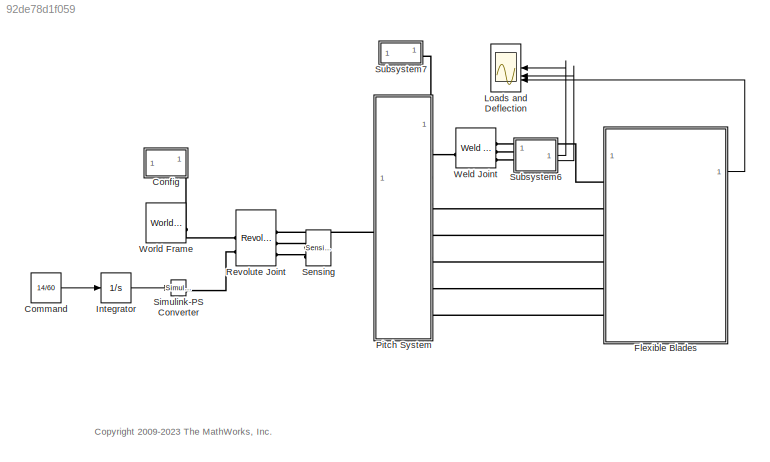
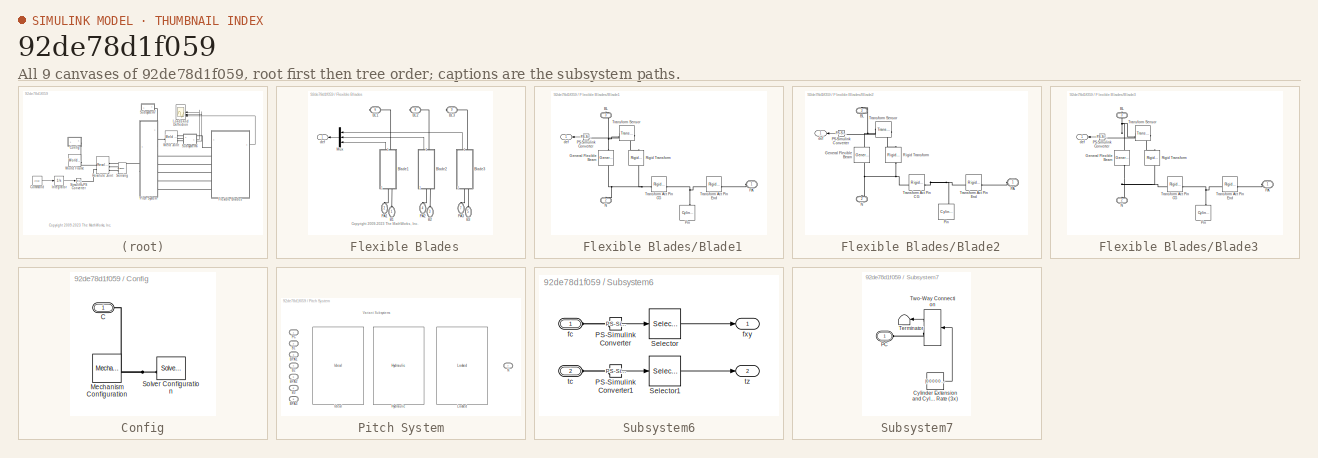
[diagram: thumbnail index - all 9 canvases of the model, root first then tree order]
MODEL slx_92de78d1f059
KIND model
CONFIG AbsTol = auto
CONFIG EnableMultiTasking = on
CONFIG FixedStep = auto
CONFIG InitFcn = cantilever1=cantilever_aluminum;\nload1.mass = 20 ; %kg\nload1.inertia = eye(3) ; % assume point mass\nload2=load1;\nload2.angle = 35 * pi / 180;
CONFIG MaxStep = auto
CONFIG MinStep = auto
CONFIG PostLoadFcn = loadMass = 20; %kg
CONFIG PreLoadFcn = load ss_cantilever_pva.mat\nwarning('off','Simulink:SL_SaveWithParameterizedLinks_Warning');\n\n
CONFIG RelTol = 1e-5
CONFIG SampleTimeConstraint = Unconstrained
CONFIG SolverName = ode15s
CONFIG StartTime = 0.0
CONFIG StopTime = 10
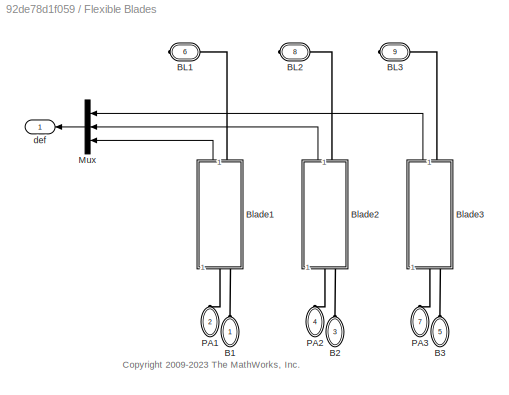
BLOCK [SubSystem]  Flexible Blades
BLOCK [PMIOPort]  Flexible Blades/B1
  NameLocation = right
  Side = Left
  Tag = PMCPort
BLOCK [PMIOPort]  Flexible Blades/B2
  NameLocation = right
  Port = 3
  Side = Left
  Tag = PMCPort
BLOCK [PMIOPort]  Flexible Blades/B3
  NameLocation = right
  Port = 5
  Side = Left
  Tag = PMCPort
BLOCK [PMIOPort]  Flexible Blades/BL1
  Port = 6
  Side = Right
  Tag = PMCPort
BLOCK [PMIOPort]  Flexible Blades/BL2
  Port = 8
  Side = Right
  Tag = PMCPort
BLOCK [PMIOPort]  Flexible Blades/BL3
  Port = 9
  Side = Right
  Tag = PMCPort
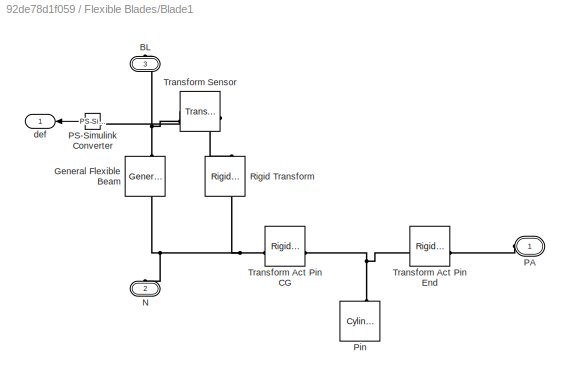
BLOCK [SubSystem]  Flexible Blades/Blade1
  NameLocation = right
BLOCK [PMIOPort]  Flexible Blades/Blade1/BL
  NameLocation = right
  Port = 3
  Side = Right
BLOCK [Reference]  Flexible Blades/Blade1/General Flexible Beam  REF=sm_lib/Body Elements/Flexible Bodies/Beams/General Flexible Beam
  NameLocation = left
  SourceBlock = sm_lib/Body Elements/Flexible Bodies/Beams/General Flexible Beam
  SourceType = General Flexible Beam
BLOCK [PMIOPort]  Flexible Blades/Blade1/N
  NameLocation = right
  Port = 2
  Side = Left
BLOCK [PMIOPort]  Flexible Blades/Blade1/PA
  Side = Left
BLOCK [Reference]  Flexible Blades/Blade1/PS-Simulink Converter  REF=nesl_utility/PS-Simulink
Converter
  NameLocation = top
  SourceBlock = nesl_utility/PS-Simulink\nConverter
  SourceType = PS-Simulink\nConverter
BLOCK [Reference]  Flexible Blades/Blade1/Pin  REF=sm_lib/Body Elements/Cylindrical Solid
  NameLocation = right
  SourceBlock = sm_lib/Body Elements/Cylindrical Solid
  SourceType = Cylindrical Solid
BLOCK [Reference]  Flexible Blades/Blade1/Rigid Transform  REF=sm_lib/Frames and
Transforms/Rigid
Transform
  NameLocation = right
  SourceBlock = sm_lib/Frames and\nTransforms/Rigid\nTransform
  SourceType = Rigid\nTransform
BLOCK [Reference]  Flexible Blades/Blade1/Transform Act Pin CG  REF=sm_lib/Frames and
Transforms/Rigid
Transform
  SourceBlock = sm_lib/Frames and\nTransforms/Rigid\nTransform
  SourceType = Rigid\nTransform
BLOCK [Reference]  Flexible Blades/Blade1/Transform Act Pin End  REF=sm_lib/Frames and
Transforms/Rigid
Transform
  SourceBlock = sm_lib/Frames and\nTransforms/Rigid\nTransform
  SourceType = Rigid\nTransform
BLOCK [Reference]  Flexible Blades/Blade1/Transform Sensor  REF=sm_lib/Frames and
Transforms/Transform
Sensor
  NameLocation = top
  SourceBlock = sm_lib/Frames and\nTransforms/Transform\nSensor
  SourceType = Transform\nSensor
BLOCK [Outport]  Flexible Blades/Blade1/def
  NameLocation = top
  VectorParamsAs1DForOutWhenUnconnected = off
BLOCK [SubSystem]  Flexible Blades/Blade2
  NameLocation = right
BLOCK [PMIOPort]  Flexible Blades/Blade2/BL
  NameLocation = right
  Port = 3
  Side = Right
BLOCK [Reference]  Flexible Blades/Blade2/General Flexible Beam  REF=sm_lib/Body Elements/Flexible Bodies/Beams/General Flexible Beam
  NameLocation = left
  SourceBlock = sm_lib/Body Elements/Flexible Bodies/Beams/General Flexible Beam
  SourceType = General Flexible Beam
BLOCK [PMIOPort]  Flexible Blades/Blade2/N
  NameLocation = right
  Port = 2
  Side = Left
BLOCK [PMIOPort]  Flexible Blades/Blade2/PA
  Side = Left
BLOCK [Reference]  Flexible Blades/Blade2/PS-Simulink Converter  REF=nesl_utility/PS-Simulink
Converter
  NameLocation = top
  SourceBlock = nesl_utility/PS-Simulink\nConverter
  SourceType = PS-Simulink\nConverter
BLOCK [Reference]  Flexible Blades/Blade2/Pin  REF=sm_lib/Body Elements/Cylindrical Solid
  NameLocation = right
  SourceBlock = sm_lib/Body Elements/Cylindrical Solid
  SourceType = Cylindrical Solid
BLOCK [Reference]  Flexible Blades/Blade2/Rigid Transform  REF=sm_lib/Frames and
Transforms/Rigid
Transform
  NameLocation = right
  SourceBlock = sm_lib/Frames and\nTransforms/Rigid\nTransform
  SourceType = Rigid\nTransform
BLOCK [Reference]  Flexible Blades/Blade2/Transform Act Pin CG  REF=sm_lib/Frames and
Transforms/Rigid
Transform
  SourceBlock = sm_lib/Frames and\nTransforms/Rigid\nTransform
  SourceType = Rigid\nTransform
BLOCK [Reference]  Flexible Blades/Blade2/Transform Act Pin End  REF=sm_lib/Frames and
Transforms/Rigid
Transform
  SourceBlock = sm_lib/Frames and\nTransforms/Rigid\nTransform
  SourceType = Rigid\nTransform
BLOCK [Reference]  Flexible Blades/Blade2/Transform Sensor  REF=sm_lib/Frames and
Transforms/Transform
Sensor
  NameLocation = top
  SourceBlock = sm_lib/Frames and\nTransforms/Transform\nSensor
  SourceType = Transform\nSensor
BLOCK [Outport]  Flexible Blades/Blade2/def
  NameLocation = top
  VectorParamsAs1DForOutWhenUnconnected = off
BLOCK [SubSystem]  Flexible Blades/Blade3
  NameLocation = right
BLOCK [PMIOPort]  Flexible Blades/Blade3/BL
  NameLocation = right
  Port = 3
  Side = Right
BLOCK [Reference]  Flexible Blades/Blade3/General Flexible Beam  REF=sm_lib/Body Elements/Flexible Bodies/Beams/General Flexible Beam
  NameLocation = left
  SourceBlock = sm_lib/Body Elements/Flexible Bodies/Beams/General Flexible Beam
  SourceType = General Flexible Beam
BLOCK [PMIOPort]  Flexible Blades/Blade3/N
  NameLocation = right
  Port = 2
  Side = Left
BLOCK [PMIOPort]  Flexible Blades/Blade3/PA
  Side = Left
BLOCK [Reference]  Flexible Blades/Blade3/PS-Simulink Converter  REF=nesl_utility/PS-Simulink
Converter
  NameLocation = top
  SourceBlock = nesl_utility/PS-Simulink\nConverter
  SourceType = PS-Simulink\nConverter
BLOCK [Reference]  Flexible Blades/Blade3/Pin  REF=sm_lib/Body Elements/Cylindrical Solid
  NameLocation = right
  SourceBlock = sm_lib/Body Elements/Cylindrical Solid
  SourceType = Cylindrical Solid
BLOCK [Reference]  Flexible Blades/Blade3/Rigid Transform  REF=sm_lib/Frames and
Transforms/Rigid
Transform
  NameLocation = right
  SourceBlock = sm_lib/Frames and\nTransforms/Rigid\nTransform
  SourceType = Rigid\nTransform
BLOCK [Reference]  Flexible Blades/Blade3/Transform Act Pin CG  REF=sm_lib/Frames and
Transforms/Rigid
Transform
  SourceBlock = sm_lib/Frames and\nTransforms/Rigid\nTransform
  SourceType = Rigid\nTransform
BLOCK [Reference]  Flexible Blades/Blade3/Transform Act Pin End  REF=sm_lib/Frames and
Transforms/Rigid
Transform
  SourceBlock = sm_lib/Frames and\nTransforms/Rigid\nTransform
  SourceType = Rigid\nTransform
BLOCK [Reference]  Flexible Blades/Blade3/Transform Sensor  REF=sm_lib/Frames and
Transforms/Transform
Sensor
  NameLocation = top
  SourceBlock = sm_lib/Frames and\nTransforms/Transform\nSensor
  SourceType = Transform\nSensor
BLOCK [Outport]  Flexible Blades/Blade3/def
  NameLocation = top
  VectorParamsAs1DForOutWhenUnconnected = off
BLOCK [Mux]  Flexible Blades/Mux
  DisplayOption = bar
  Inputs = 3
BLOCK [PMIOPort]  Flexible Blades/PA1
  NameLocation = left
  Port = 2
  Side = Left
  Tag = PMCPort
BLOCK [PMIOPort]  Flexible Blades/PA2
  NameLocation = left
  Port = 4
  Side = Left
  Tag = PMCPort
BLOCK [PMIOPort]  Flexible Blades/PA3
  NameLocation = left
  Port = 7
  Side = Left
  Tag = PMCPort
BLOCK [Outport]  Flexible Blades/def
  NameLocation = top
  VectorParamsAs1DForOutWhenUnconnected = off
BLOCK [Constant] Command
  Value = 14/60
BLOCK [SubSystem] Config
BLOCK [PMIOPort] Config/C
  Side = Left
BLOCK [Reference] Config/Mechanism Configuration  REF=sm_lib/Utilities/Mechanism
Configuration
  SourceBlock = sm_lib/Utilities/Mechanism\nConfiguration
  SourceType = Mechanism\nConfiguration
BLOCK [Reference] Config/Solver Configuration  REF=nesl_utility/Solver
Configuration
  SourceBlock = nesl_utility/Solver\nConfiguration
  SourceType = Solver\nConfiguration
BLOCK [Integrator] Integrator
BLOCK [Scope] Loads and Deflection
  Floating = off
  NumInputPorts = 3
  ScopeSpecificationString = Simulink.scopes.TimeScopeBlockCfg('CurrentConfiguration', extmgr.ConfigurationSet(extmgr.Configuration('Core','General UI',true),extmgr.Configuration('Core','Source UI',true),extmgr.Configuration('Sources','WiredSimulink',true,'DataLoggingVariableName','ScopeData3','DataLoggingSaveFormat','StructureWithTime','DataLoggingLimitDataPoints',true,'DataLoggingDecimation','1','DataLoggingDecimateData',tr...<+3064ch>
BLOCK [SubSystem] Pitch System
  AttributesFormatString = %<ActiveVariant>
  LabelModeActiveChoice = Locked
  Tag = CustomStyle
  Variant = on
  VariantControlMode = label
BLOCK [PMIOPort] Pitch System/B1
  Port = 2
  Side = Left
  Tag = PMCPort
BLOCK [PMIOPort] Pitch System/B2
  Port = 4
  Side = Left
  Tag = PMCPort
BLOCK [PMIOPort] Pitch System/B3
  Port = 6
  Side = Left
  Tag = PMCPort
BLOCK [PMIOPort] Pitch System/BPA1
  Port = 3
  Side = Left
  Tag = PMCPort
BLOCK [PMIOPort] Pitch System/BPA2
  Port = 5
  Side = Left
  Tag = PMCPort
BLOCK [PMIOPort] Pitch System/BPA3
  Port = 8
  Side = Left
  Tag = PMCPort
BLOCK [Reference] Pitch System/Hydraulic  REF=Pitch_System_Lib/Hydraulic
  SourceBlock = Pitch_System_Lib/Hydraulic
BLOCK [Reference] Pitch System/Ideal  REF=Pitch_System_Lib/Ideal
  SourceBlock = Pitch_System_Lib/Ideal
BLOCK [Reference] Pitch System/Locked  REF=Pitch_System_Lib/Locked
  SourceBlock = Pitch_System_Lib/Locked
BLOCK [PMIOPort] Pitch System/N
  Port = 7
  Side = Right
  Tag = PMCPort
BLOCK [PMIOPort] Pitch System/PC
  Side = Left
  Tag = PMCPort
BLOCK [Reference] Revolute Joint  REF=sm_lib/Joints/Revolute Joint
  NameLocation = top
  SourceBlock = sm_lib/Joints/Revolute Joint
  SourceType = Revolute Joint
BLOCK [Reference] Sensing  REF=Hub_Axis_Lib/Rotate/Sensing
  SourceBlock = Hub_Axis_Lib/Rotate/Sensing
  SourceType = SubSystem
BLOCK [Reference] Simulink-PS Converter  REF=nesl_utility/Simulink-PS
Converter
  SourceBlock = nesl_utility/Simulink-PS\nConverter
  SourceType = Simulink-PS\nConverter
BLOCK [SubSystem] Subsystem6
BLOCK [Reference] Subsystem6/PS-Simulink Converter  REF=nesl_utility/PS-Simulink
Converter
  SourceBlock = nesl_utility/PS-Simulink\nConverter
  SourceType = PS-Simulink\nConverter
BLOCK [Reference] Subsystem6/PS-Simulink Converter1  REF=nesl_utility/PS-Simulink
Converter
  SourceBlock = nesl_utility/PS-Simulink\nConverter
  SourceType = PS-Simulink\nConverter
BLOCK [Selector] Subsystem6/Selector
  IndexOptions = Index vector (dialog)
  Indices = [1 2]
  InputPortWidth = 3
  OutputSizes = 1
BLOCK [Selector] Subsystem6/Selector1
  IndexOptions = Index vector (dialog)
  Indices = [3]
  InputPortWidth = 3
  OutputSizes = 1
BLOCK [PMIOPort] Subsystem6/fc
  Side = Left
BLOCK [Outport] Subsystem6/fxy
  VectorParamsAs1DForOutWhenUnconnected = off
BLOCK [PMIOPort] Subsystem6/tc
  Port = 2
  Side = Left
BLOCK [Outport] Subsystem6/tz
  Port = 2
  VectorParamsAs1DForOutWhenUnconnected = off
BLOCK [SubSystem] Subsystem7
BLOCK [Constant] Subsystem7/Cylinder Extension and Cylinder Extension Rate (3x)
  Value = [0 0 0 0 0 0]
BLOCK [PMIOPort] Subsystem7/PC
  Side = Left
  Tag = PMCPort
BLOCK [Terminator] Subsystem7/Terminator
  NameLocation = top
BLOCK [TwoWayConnection] Subsystem7/Two-Way Connection
BLOCK [Reference] Weld Joint  REF=sm_lib/Joints/Weld Joint
  SourceBlock = sm_lib/Joints/Weld Joint
  SourceType = Weld Joint
BLOCK [Reference] World Frame  REF=sm_lib/Frames and
Transforms/World Frame
  NameLocation = top
  SourceBlock = sm_lib/Frames and\nTransforms/World Frame
  SourceType = World Frame
ANNOTATION (root): <copyright redacted>
ANNOTATION  Flexible Blades: <copyright redacted>
ANNOTATION Pitch System: Variant Subsystems
LINE  Flexible Blades/Blade1/PS-Simulink Converter:1 ->  Flexible Blades/Blade1/def:1
LINE  Flexible Blades/Blade1:1 ->  Flexible Blades/Mux:3
LINE  Flexible Blades/Blade2/PS-Simulink Converter:1 ->  Flexible Blades/Blade2/def:1
LINE  Flexible Blades/Blade2:1 ->  Flexible Blades/Mux:2
LINE  Flexible Blades/Blade3/PS-Simulink Converter:1 ->  Flexible Blades/Blade3/def:1
LINE  Flexible Blades/Blade3:1 ->  Flexible Blades/Mux:1
LINE  Flexible Blades/Mux:1 ->  Flexible Blades/def:1
LINE  Flexible Blades:1 -> Loads and Deflection:3
LINE Command:1 -> Integrator:1
LINE Integrator:1 -> Simulink-PS Converter:1
LINE Subsystem6/PS-Simulink Converter1:1 -> Subsystem6/Selector1:1
LINE Subsystem6/PS-Simulink Converter:1 -> Subsystem6/Selector:1
LINE Subsystem6/Selector1:1 -> Subsystem6/tz:1
LINE Subsystem6/Selector:1 -> Subsystem6/fxy:1
LINE Subsystem6:1 -> Loads and Deflection:1
LINE Subsystem6:2 -> Loads and Deflection:2
LINE Subsystem7/Cylinder Extension and Cylinder Extension Rate (3x):1 -> Subsystem7/Two-Way Connection:1
LINE Subsystem7/Two-Way Connection:1 -> Subsystem7/Terminator:1
PLINE  Flexible Blades/B1:RConn1 --  Flexible Blades/Blade1:LConn2
PLINE  Flexible Blades/B2:RConn1 --  Flexible Blades/Blade2:LConn2
PLINE  Flexible Blades/B3:RConn1 --  Flexible Blades/Blade3:LConn2
PLINE  Flexible Blades/BL1:RConn1 --  Flexible Blades/Blade1:RConn1
PLINE  Flexible Blades/BL2:RConn1 --  Flexible Blades/Blade2:RConn1
PLINE  Flexible Blades/BL3:RConn1 --  Flexible Blades/Blade3:RConn1
PNET net1:  Flexible Blades/Blade1/BL:RConn1 --  Flexible Blades/Blade1/General Flexible Beam:RConn1 --  Flexible Blades/Blade1/Transform Sensor:RConn1
PNET net2:  Flexible Blades/Blade1/General Flexible Beam:LConn1 --  Flexible Blades/Blade1/N:RConn1 --  Flexible Blades/Blade1/Rigid Transform:LConn1 --  Flexible Blades/Blade1/Transform Act Pin CG:LConn1
PLINE  Flexible Blades/Blade1/PA:RConn1 --  Flexible Blades/Blade1/Transform Act Pin End:RConn1
PLINE  Flexible Blades/Blade1/PS-Simulink Converter:LConn1 --  Flexible Blades/Blade1/Transform Sensor:RConn2
PNET net3:  Flexible Blades/Blade1/Pin:RConn1 --  Flexible Blades/Blade1/Transform Act Pin CG:RConn1 --  Flexible Blades/Blade1/Transform Act Pin End:LConn1
PLINE  Flexible Blades/Blade1/Rigid Transform:RConn1 --  Flexible Blades/Blade1/Transform Sensor:LConn1
PLINE  Flexible Blades/Blade1:LConn1 --  Flexible Blades/PA1:RConn1
PNET net4:  Flexible Blades/Blade2/BL:RConn1 --  Flexible Blades/Blade2/General Flexible Beam:RConn1 --  Flexible Blades/Blade2/Transform Sensor:RConn1
PNET net5:  Flexible Blades/Blade2/General Flexible Beam:LConn1 --  Flexible Blades/Blade2/N:RConn1 --  Flexible Blades/Blade2/Rigid Transform:LConn1 --  Flexible Blades/Blade2/Transform Act Pin CG:LConn1
PLINE  Flexible Blades/Blade2/PA:RConn1 --  Flexible Blades/Blade2/Transform Act Pin End:RConn1
PLINE  Flexible Blades/Blade2/PS-Simulink Converter:LConn1 --  Flexible Blades/Blade2/Transform Sensor:RConn2
PNET net6:  Flexible Blades/Blade2/Pin:RConn1 --  Flexible Blades/Blade2/Transform Act Pin CG:RConn1 --  Flexible Blades/Blade2/Transform Act Pin End:LConn1
PLINE  Flexible Blades/Blade2/Rigid Transform:RConn1 --  Flexible Blades/Blade2/Transform Sensor:LConn1
PLINE  Flexible Blades/Blade2:LConn1 --  Flexible Blades/PA2:RConn1
PNET net7:  Flexible Blades/Blade3/BL:RConn1 --  Flexible Blades/Blade3/General Flexible Beam:RConn1 --  Flexible Blades/Blade3/Transform Sensor:RConn1
PNET net8:  Flexible Blades/Blade3/General Flexible Beam:LConn1 --  Flexible Blades/Blade3/N:RConn1 --  Flexible Blades/Blade3/Rigid Transform:LConn1 --  Flexible Blades/Blade3/Transform Act Pin CG:LConn1
PLINE  Flexible Blades/Blade3/PA:RConn1 --  Flexible Blades/Blade3/Transform Act Pin End:RConn1
PLINE  Flexible Blades/Blade3/PS-Simulink Converter:LConn1 --  Flexible Blades/Blade3/Transform Sensor:RConn2
PNET net9:  Flexible Blades/Blade3/Pin:RConn1 --  Flexible Blades/Blade3/Transform Act Pin CG:RConn1 --  Flexible Blades/Blade3/Transform Act Pin End:LConn1
PLINE  Flexible Blades/Blade3/Rigid Transform:RConn1 --  Flexible Blades/Blade3/Transform Sensor:LConn1
PLINE  Flexible Blades/Blade3:LConn1 --  Flexible Blades/PA3:RConn1
PLINE  Flexible Blades:LConn1 -- Weld Joint:RConn1
PLINE  Flexible Blades:LConn2 -- Pitch System:LConn3
PLINE  Flexible Blades:LConn3 -- Pitch System:LConn4
PLINE  Flexible Blades:LConn4 -- Pitch System:LConn5
PLINE  Flexible Blades:LConn5 -- Pitch System:LConn6
PLINE  Flexible Blades:LConn6 -- Pitch System:LConn7
PNET net10: Config/C:RConn1 -- Config/Mechanism Configuration:RConn1 -- Config/Solver Configuration:RConn1
PNET net11: Config:LConn1 -- Revolute Joint:LConn1 -- World Frame:RConn1
PLINE Pitch System:LConn1 -- Subsystem7:LConn1
PLINE Pitch System:LConn2 -- Weld Joint:LConn1
PLINE Pitch System:RConn1 -- Revolute Joint:RConn1
PLINE Revolute Joint:LConn2 -- Simulink-PS Converter:RConn1
PLINE Revolute Joint:RConn2 -- Sensing:LConn1
PLINE Revolute Joint:RConn3 -- Sensing:LConn2
PLINE Subsystem6/PS-Simulink Converter1:LConn1 -- Subsystem6/tc:RConn1
PLINE Subsystem6/PS-Simulink Converter:LConn1 -- Subsystem6/fc:RConn1
PLINE Subsystem6:LConn1 -- Weld Joint:RConn2
PLINE Subsystem6:LConn2 -- Weld Joint:RConn3
PLINE Subsystem7/PC:RConn1 -- Subsystem7/Two-Way Connection:RConn1
note: PNET lines group multi-terminal physical nets as a canonical sorted terminal list (undirected conserving connections); 2-terminal nets keep the pairwise PLINE form
